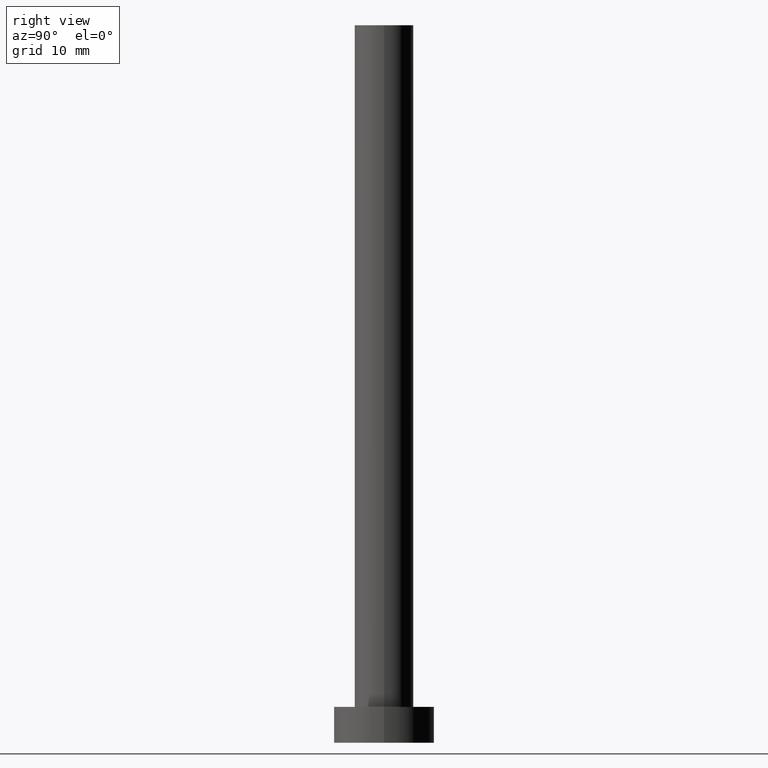
[diagram: clean part render]
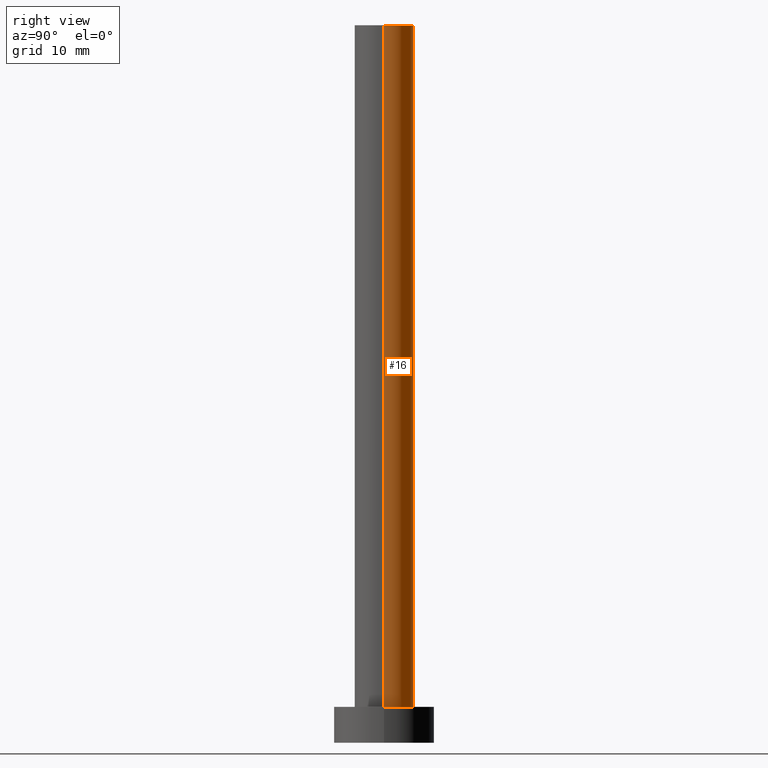
[diagram: same view with one face highlighted and labeled with its STEP entity id]
A machine part, right view. The second image highlights one B-rep face of the part: STEP entity #16.
In plain terms, the highlighted cylindrical surface (edge-blend (fillet) strip) has radius 4.1 mm, axis along (-0, -0, -1).
Its self-contained STEP definition (entity closure, byte-faithful):
#1 = EDGE_CURVE ( 'NONE', #114, #191, #79, .T. ) ;
#4 = EDGE_CURVE ( 'NONE', #191, #254, #134, .T. ) ;
#5 = CARTESIAN_POINT ( 'NONE',  ( 4.099999999999999645, 5.021051876504147385E-16, 100.0000000000000000 ) ) ;
#6 = DIRECTION ( 'NONE',  ( -0.000000000000000000, -0.000000000000000000, -1.000000000000000000 ) ) ;
#7 = CARTESIAN_POINT ( 'NONE',  ( -4.099999999999999645, 0.000000000000000000, 5.000000000000000000 ) ) ;
#13 = CARTESIAN_POINT ( 'NONE',  ( 0.000000000000000000, 0.000000000000000000, 100.0000000000000000 ) ) ;
#16 = ADVANCED_FACE ( 'NONE', ( #38 ), #237, .T. ) ;
#27 = AXIS2_PLACEMENT_3D ( 'NONE', #116, #92, #95 ) ;
#38 = FACE_OUTER_BOUND ( 'NONE', #76, .T. ) ;
#42 = CARTESIAN_POINT ( 'NONE',  ( -4.099999999999999645, 0.000000000000000000, 100.0000000000000000 ) ) ;
#52 = ORIENTED_EDGE ( 'NONE', *, *, #4, .F. ) ;
#55 = CARTESIAN_POINT ( 'NONE',  ( -4.099999999999999645, 0.000000000000000000, 100.0000000000000000 ) ) ;
#76 = EDGE_LOOP ( 'NONE', ( #193, #232, #153, #52 ) ) ;
#78 = DIRECTION ( 'NONE',  ( 1.000000000000000000, 0.000000000000000000, 0.000000000000000000 ) ) ;
#79 = CIRCLE ( 'NONE', #249, 4.099999999999999645 ) ;
#81 = EDGE_CURVE ( 'NONE', #135, #254, #178, .T. ) ;
#83 = CARTESIAN_POINT ( 'NONE',  ( 0.000000000000000000, 0.000000000000000000, 5.000000000000000000 ) ) ;
#92 = DIRECTION ( 'NONE',  ( -0.000000000000000000, -0.000000000000000000, -1.000000000000000000 ) ) ;
#95 = DIRECTION ( 'NONE',  ( -1.000000000000000000, 0.000000000000000000, 0.000000000000000000 ) ) ;
#114 = VERTEX_POINT ( 'NONE', #139 ) ;
#116 = CARTESIAN_POINT ( 'NONE',  ( 0.000000000000000000, 0.000000000000000000, 100.0000000000000000 ) ) ;
#120 = LINE ( 'NONE', #5, #158 ) ;
#125 = VECTOR ( 'NONE', #215, 1000.000000000000000 ) ;
#129 = AXIS2_PLACEMENT_3D ( 'NONE', #83, #138, #221 ) ;
#134 = LINE ( 'NONE', #55, #125 ) ;
#135 = VERTEX_POINT ( 'NONE', #241 ) ;
#138 = DIRECTION ( 'NONE',  ( 0.000000000000000000, 0.000000000000000000, 1.000000000000000000 ) ) ;
#139 = CARTESIAN_POINT ( 'NONE',  ( 4.099999999999999645, 5.021051876504147385E-16, 100.0000000000000000 ) ) ;
#153 = ORIENTED_EDGE ( 'NONE', *, *, #81, .T. ) ;
#158 = VECTOR ( 'NONE', #6, 1000.000000000000000 ) ;
#178 = CIRCLE ( 'NONE', #129, 4.099999999999999645 ) ;
#180 = EDGE_CURVE ( 'NONE', #114, #135, #120, .T. ) ;
#191 = VERTEX_POINT ( 'NONE', #42 ) ;
#193 = ORIENTED_EDGE ( 'NONE', *, *, #1, .F. ) ;
#215 = DIRECTION ( 'NONE',  ( -0.000000000000000000, -0.000000000000000000, -1.000000000000000000 ) ) ;
#221 = DIRECTION ( 'NONE',  ( 1.000000000000000000, 0.000000000000000000, 0.000000000000000000 ) ) ;
#232 = ORIENTED_EDGE ( 'NONE', *, *, #180, .T. ) ;
#235 = DIRECTION ( 'NONE',  ( 0.000000000000000000, 0.000000000000000000, 1.000000000000000000 ) ) ;
#237 = CYLINDRICAL_SURFACE ( 'NONE', #27, 4.099999999999999645 ) ;
#241 = CARTESIAN_POINT ( 'NONE',  ( 4.099999999999999645, 5.021051876504147385E-16, 5.000000000000000000 ) ) ;
#249 = AXIS2_PLACEMENT_3D ( 'NONE', #13, #235, #78 ) ;
#254 = VERTEX_POINT ( 'NONE', #7 ) ;